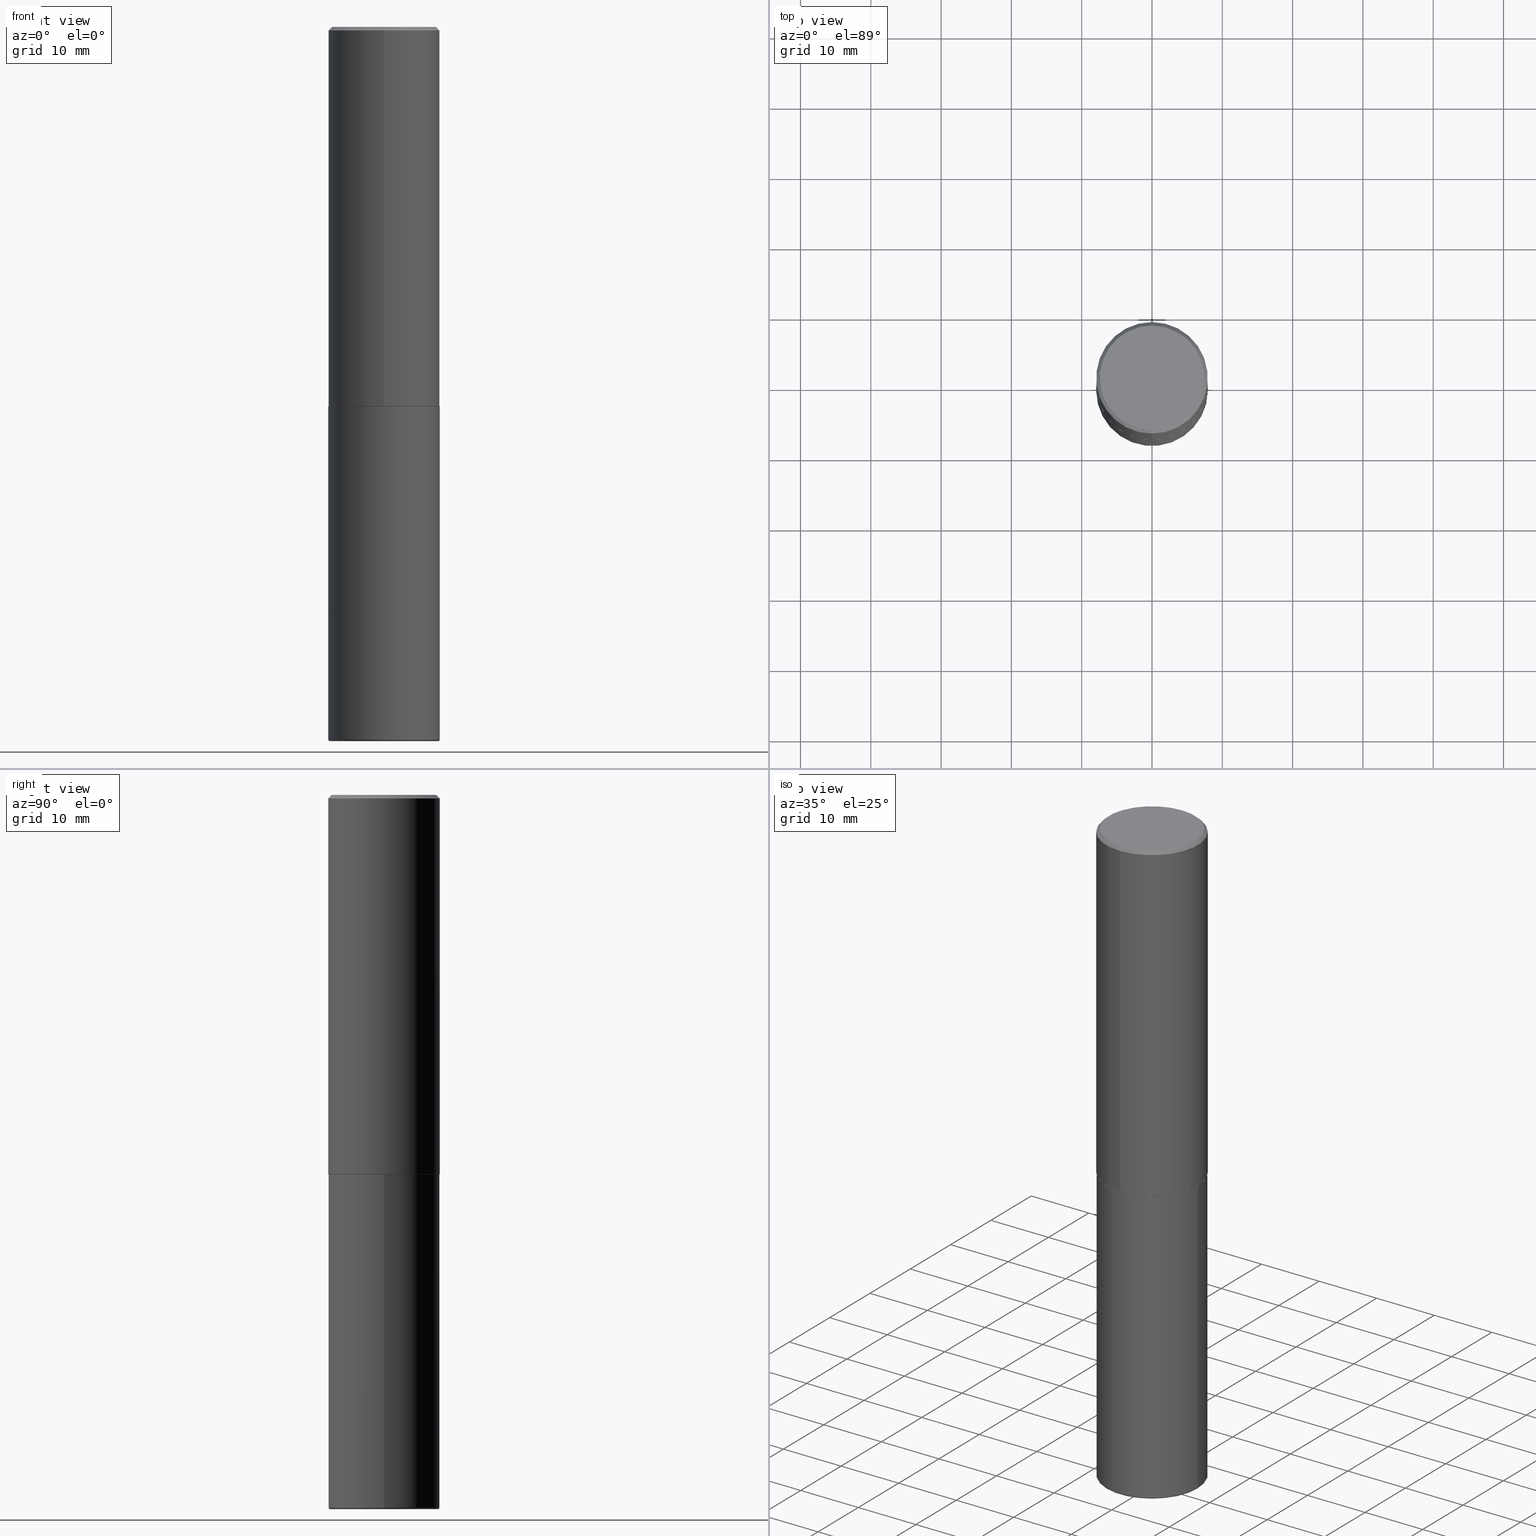
[diagram: canonical four-view strip — front | top / right | iso, engineering-drawing reading convention]
A machine part, canonical four-view strip (front | top / right | iso — engineering-drawing reading convention). The complete STEP part file that produces these views, byte-faithful:
ISO-10303-21;
HEADER;
FILE_DESCRIPTION (( 'STEP AP203' ),
    '1' );
FILE_NAME ('37570.STEP',
    '2024-03-02T04:30:19',
    ( '' ),
    ( '' ),
    'SwSTEP 2.0',
    'SolidWorks 2023',
    '' );
FILE_SCHEMA (( 'CONFIG_CONTROL_DESIGN' ));
ENDSEC;

DATA;
#1 = APPROVAL_ROLE ( '' ) ;
#2 = DIRECTION ( 'NONE',  ( -6.982962677686265133E-15, -1.000000000000000000, 3.492364022149836753E-15 ) ) ;
#3 = CIRCLE ( 'NONE', #21, 0.3114999999999999991 ) ;
#4 = DIRECTION ( 'NONE',  ( -2.445468806185136597E-29, 3.491481338843145583E-15, 1.000000000000000000 ) ) ;
#5 = ADVANCED_FACE ( 'NONE', ( #17 ), #206, .T. ) ;
#6 = ORIENTED_EDGE ( 'NONE', *, *, #352, .T. ) ;
#7 = DIRECTION ( 'NONE',  ( 1.000000000000000000, -6.982962677686265133E-15, 0.000000000000000000 ) ) ;
#8 = ADVANCED_FACE ( 'NONE', ( #214 ), #410, .T. ) ;
#9 = APPROVAL_PERSON_ORGANIZATION ( #359, #217, #1 ) ;
#10 = CIRCLE ( 'NONE', #149, 0.2924999999999999822 ) ;
#11 = CARTESIAN_POINT ( 'NONE',  ( -0.3025000000000000466, -1.178161876630984610E-14, -3.989999999999999769 ) ) ;
#12 = CARTESIAN_POINT ( 'NONE',  ( -2.143905624303602824E-15, -0.3125000000000000555, -0.01999999999999897693 ) ) ;
#13 = VERTEX_POINT ( 'NONE', #177 ) ;
#14 = DIRECTION ( 'NONE',  ( -6.982962677686265133E-15, -1.000000000000000000, 3.496765431890256920E-15 ) ) ;
#15 = ORIENTED_EDGE ( 'NONE', *, *, #160, .F. ) ;
#16 = VECTOR ( 'NONE', #114, 39.37007874015748143 ) ;
#17 = FACE_OUTER_BOUND ( 'NONE', #101, .T. ) ;
#18 = EDGE_LOOP ( 'NONE', ( #384, #405 ) ) ;
#19 = SECURITY_CLASSIFICATION ( '', '', #365 ) ;
#20 = CARTESIAN_POINT ( 'NONE',  ( 9.757420536678694842E-29, -1.393101054198414910E-14, -3.989999999999999769 ) ) ;
#21 = AXIS2_PLACEMENT_3D ( 'NONE', #229, #361, #59 ) ;
#22 = PRODUCT_DEFINITION ( 'UNKNOWN', '', #296, #407 ) ;
#23 = DIRECTION ( 'NONE',  ( -2.445468806185136597E-29, 3.491481338843145583E-15, 1.000000000000000000 ) ) ;
#24 = ORIENTED_EDGE ( 'NONE', *, *, #123, .T. ) ;
#25 = CARTESIAN_POINT ( 'NONE',  ( 2.182175836776958741E-15, 0.3124999999999999445, -0.02000000000000116268 ) ) ;
#26 = CARTESIAN_POINT ( 'NONE',  ( 0.3125000000000000000, -2.182175836776958347E-15, 1.523805242436230075E-29 ) ) ;
#27 = PERSON_AND_ORGANIZATION_ROLE ( 'classification_officer' ) ;
#28 = CARTESIAN_POINT ( 'NONE',  ( 9.781875224740545266E-29, -1.396592535537258075E-14, -3.999999999999999556 ) ) ;
#29 = ORIENTED_EDGE ( 'NONE', *, *, #202, .F. ) ;
#30 = CARTESIAN_POINT ( 'NONE',  ( -2.150299018297948745E-46, 3.071607443834507134E-32, 8.795209847407834549E-18 ) ) ;
#31 = ADVANCED_FACE ( 'NONE', ( #312 ), #128, .T. ) ;
#32 = DIRECTION ( 'NONE',  ( -2.444852431726452894E-29, 3.492364022149836358E-15, 1.000000000000000000 ) ) ;
#33 = ORIENTED_EDGE ( 'NONE', *, *, #202, .T. ) ;
#34 = CARTESIAN_POINT ( 'NONE',  ( -2.175192874099219874E-15, -0.3115000000000074376, -2.124999999999998668 ) ) ;
#35 = AXIS2_PLACEMENT_3D ( 'NONE', #42, #369, #70 ) ;
#36 = MANIFOLD_SOLID_BREP ( 'Body-Move/Copy2[2]', #167 ) ;
#37 = DIRECTION ( 'NONE',  ( -2.445468806185136597E-29, 3.491481338843145583E-15, 1.000000000000000000 ) ) ;
#38 = MANIFOLD_SOLID_BREP ( 'Body-Move/Copy2[1]', #327 ) ;
#39 = LINE ( 'NONE', #194, #415 ) ;
#40 = CARTESIAN_POINT ( 'NONE',  ( 5.195311417418712329E-29, -7.421273547068401324E-15, -2.124999999999999556 ) ) ;
#41 = CC_DESIGN_APPROVAL ( #46, ( #19 ) ) ;
#42 = CARTESIAN_POINT ( 'NONE',  ( 0.000000000000000000, 0.000000000000000000, 0.000000000000000000 ) ) ;
#43 = AXIS2_PLACEMENT_3D ( 'NONE', #20, #406, #314 ) ;
#44 = DIRECTION ( 'NONE',  ( 1.000000000000000000, -6.982962677686268288E-15, 0.000000000000000000 ) ) ;
#45 = AXIS2_PLACEMENT_3D ( 'NONE', #329, #32, #154 ) ;
#46 = APPROVAL ( #230, 'UNSPECIFIED' ) ;
#47 = DIRECTION ( 'NONE',  ( -2.444852431726452894E-29, 3.492364022149836358E-15, 1.000000000000000000 ) ) ;
#48 = DATE_AND_TIME ( #344, #414 ) ;
#49 = DIRECTION ( 'NONE',  ( -2.445468806185136597E-29, 3.491481338843145583E-15, 1.000000000000000000 ) ) ;
#50 = EDGE_LOOP ( 'NONE', ( #279, #302 ) ) ;
#51 = ORIENTED_EDGE ( 'NONE', *, *, #408, .F. ) ;
#52 = CARTESIAN_POINT ( 'NONE',  ( 9.757420536678694842E-29, -1.393101054198414910E-14, -3.989999999999999769 ) ) ;
#53 = EDGE_CURVE ( 'NONE', #288, #276, #284, .T. ) ;
#54 = APPROVAL_STATUS ( 'not_yet_approved' ) ;
#55 = ORIENTED_EDGE ( 'NONE', *, *, #372, .T. ) ;
#56 = DIRECTION ( 'NONE',  ( 1.000000000000000000, -6.982962677686261189E-15, 0.000000000000000000 ) ) ;
#57 = ADVANCED_FACE ( 'NONE', ( #63 ), #325, .F. ) ;
#58 = EDGE_CURVE ( 'NONE', #209, #139, #265, .T. ) ;
#59 = DIRECTION ( 'NONE',  ( -6.982962677686265922E-15, -1.000000000000000000, 3.507991003100177457E-15 ) ) ;
#60 = PRODUCT_RELATED_PRODUCT_CATEGORY ( 'detail', '', ( #122 ) ) ;
#61 = PERSON_AND_ORGANIZATION_ROLE ( 'creator' ) ;
#62 = VECTOR ( 'NONE', #248, 39.37007874015748143 ) ;
#63 = FACE_OUTER_BOUND ( 'NONE', #18, .T. ) ;
#64 = DIRECTION ( 'NONE',  ( 1.000000000000000000, -6.982962677686265922E-15, 0.000000000000000000 ) ) ;
#65 = CC_DESIGN_PERSON_AND_ORGANIZATION_ASSIGNMENT ( #187, #232, ( #296 ) ) ;
#66 = ORIENTED_EDGE ( 'NONE', *, *, #224, .F. ) ;
#67 = DIRECTION ( 'NONE',  ( 2.438088387897960049E-29, -3.491481338843145188E-15, -1.000000000000000000 ) ) ;
#68 = DIRECTION ( 'NONE',  ( -2.445468806185136597E-29, 3.491481338843145583E-15, 1.000000000000000000 ) ) ;
#69 = AXIS2_PLACEMENT_3D ( 'NONE', #120, #326, #83 ) ;
#70 = DIRECTION ( 'NONE',  ( -6.982962677686265133E-15, -1.000000000000000000, 3.492364022149836358E-15 ) ) ;
#71 = LINE ( 'NONE', #401, #115 ) ;
#72 = ORIENTED_EDGE ( 'NONE', *, *, #116, .T. ) ;
#73 = EDGE_LOOP ( 'NONE', ( #319, #246, #260, #136 ) ) ;
#74 = SHAPE_DEFINITION_REPRESENTATION ( #337, #237 ) ;
#75 = EDGE_LOOP ( 'NONE', ( #29, #353, #24, #409 ) ) ;
#76 = LENGTH_MEASURE_WITH_UNIT ( LENGTH_MEASURE( 0.02539999999999999897 ), #289 );
#77 = ORIENTED_EDGE ( 'NONE', *, *, #322, .F. ) ;
#78 = FACE_OUTER_BOUND ( 'NONE', #152, .T. ) ;
#79 = CONICAL_SURFACE ( 'NONE', #388, 0.3114999999999999991, 0.7853981633975507526 ) ;
#80 = EDGE_CURVE ( 'NONE', #102, #252, #124, .T. ) ;
#81 = FACE_OUTER_BOUND ( 'NONE', #75, .T. ) ;
#82 = ADVANCED_FACE ( 'NONE', ( #81 ), #130, .T. ) ;
#83 = DIRECTION ( 'NONE',  ( 1.000000000000000000, -6.982962677686265133E-15, 0.000000000000000000 ) ) ;
#84 = ADVANCED_FACE ( 'NONE', ( #148 ), #298, .T. ) ;
#85 = AXIS2_PLACEMENT_3D ( 'NONE', #52, #23, #142 ) ;
#86 = AXIS2_PLACEMENT_3D ( 'NONE', #200, #68, #400 ) ;
#87 = DIRECTION ( 'NONE',  ( 6.982962677686265922E-15, 1.000000000000000000, -3.492364022149836358E-15 ) ) ;
#88 = CC_DESIGN_PERSON_AND_ORGANIZATION_ASSIGNMENT ( #178, #258, ( #122 ) ) ;
#89 = VERTEX_POINT ( 'NONE', #146 ) ;
#90 = LINE ( 'NONE', #34, #368 ) ;
#91 = EDGE_CURVE ( 'NONE', #139, #288, #300, .T. ) ;
#92 = PERSON_AND_ORGANIZATION ( #341, #190 ) ;
#93 = CARTESIAN_POINT ( 'NONE',  ( -0.3125000000000000000, -1.171056449273383602E-14, -3.989999999999999769 ) ) ;
#94 = AXIS2_PLACEMENT_3D ( 'NONE', #301, #183, #14 ) ;
#95 = DIRECTION ( 'NONE',  ( -1.000000000000000000, 7.105427357601049190E-15, 0.000000000000000000 ) ) ;
#96 = LINE ( 'NONE', #238, #234 ) ;
#97 = APPROVAL_DATE_TIME ( #275, #397 ) ;
#98 = CIRCLE ( 'NONE', #45, 0.3125000000000002776 ) ;
#99 = ORIENTED_EDGE ( 'NONE', *, *, #91, .F. ) ;
#100 = CC_DESIGN_PERSON_AND_ORGANIZATION_ASSIGNMENT ( #242, #141, ( #22 ) ) ;
#101 = EDGE_LOOP ( 'NONE', ( #216, #334, #245, #66 ) ) ;
#102 = VERTEX_POINT ( 'NONE', #291 ) ;
#103 = UNCERTAINTY_MEASURE_WITH_UNIT (LENGTH_MEASURE( 1.000000000000000082E-05 ), #283, 'distance_accuracy_value', 'NONE');
#104 = VERTEX_POINT ( 'NONE', #295 ) ;
#105 = CC_DESIGN_SECURITY_CLASSIFICATION ( #19, ( #296 ) ) ;
#106 = AXIS2_PLACEMENT_3D ( 'NONE', #392, #321, #56 ) ;
#107 = VERTEX_POINT ( 'NONE', #25 ) ;
#108 = DIMENSIONAL_EXPONENTS ( 1.000000000000000000, 0.000000000000000000, 0.000000000000000000, 0.000000000000000000, 0.000000000000000000, 0.000000000000000000, 0.000000000000000000 ) ;
#109 = EDGE_LOOP ( 'NONE', ( #145, #33, #395, #172 ) ) ;
#110 = ORIENTED_EDGE ( 'NONE', *, *, #195, .F. ) ;
#111 = APPLICATION_PROTOCOL_DEFINITION ( 'international standard', 'config_control_design', 1994, #239 ) ;
#112 = CC_DESIGN_APPROVAL ( #397, ( #22 ) ) ;
#113 = CARTESIAN_POINT ( 'NONE',  ( 0.000000000000000000, 0.000000000000000000, 0.000000000000000000 ) ) ;
#114 = DIRECTION ( 'NONE',  ( 4.937700262164541731E-15, 0.7071067811865442421, -0.7071067811865507924 ) ) ;
#115 = VECTOR ( 'NONE', #198, 39.37007874015748143 ) ;
#116 = EDGE_CURVE ( 'NONE', #157, #208, #3, .T. ) ;
#117 = DIRECTION ( 'NONE',  ( -2.444852431726452894E-29, 3.492364022149836358E-15, 1.000000000000000000 ) ) ;
#118 = EDGE_CURVE ( 'NONE', #139, #209, #317, .T. ) ;
#119 = DIRECTION ( 'NONE',  ( -2.445468806185136877E-29, 3.491481338843145188E-15, 1.000000000000000000 ) ) ;
#120 = CARTESIAN_POINT ( 'NONE',  ( 5.196621213143414147E-29, -7.419397845041682046E-15, -2.124999999999999556 ) ) ;
#121 = APPLICATION_CONTEXT ( 'configuration controlled 3d designs of mechanical parts and assemblies' ) ;
#122 = PRODUCT ( '37570', '37570', '', ( #250 ) ) ;
#123 = EDGE_CURVE ( 'NONE', #278, #107, #333, .T. ) ;
#124 = CIRCLE ( 'NONE', #180, 0.3125000000000002776 ) ;
#125 = DIRECTION ( 'NONE',  ( -1.000000000000000000, 6.982962677686265922E-15, -4.876176775795935793E-29 ) ) ;
#126 = DIRECTION ( 'NONE',  ( -6.982962677686265922E-15, -1.000000000000000000, 3.507991003100177457E-15 ) ) ;
#127 = DIRECTION ( 'NONE',  ( 5.024295867788576727E-15, 0.7071067811866224018, 0.7071067811864726327 ) ) ;
#128 = TOROIDAL_SURFACE ( 'NONE', #43, 0.3025000000000000466, 0.009999999999999825001 ) ;
#129 = CYLINDRICAL_SURFACE ( 'NONE', #35, 0.3125000000000001665 ) ;
#130 = CONICAL_SURFACE ( 'NONE', #135, 0.3125000000000000000, 0.7853981633974471688 ) ;
#131 = EDGE_LOOP ( 'NONE', ( #6, #378, #138, #51 ) ) ;
#132 = CARTESIAN_POINT ( 'NONE',  ( 4.889704863452922148E-31, -6.984728044299695791E-17, -0.02000000000000006981 ) ) ;
#133 = CALENDAR_DATE ( 2024, 1, 3 ) ;
#134 = EDGE_CURVE ( 'NONE', #252, #102, #98, .T. ) ;
#135 = AXIS2_PLACEMENT_3D ( 'NONE', #331, #184, #151 ) ;
#136 = ORIENTED_EDGE ( 'NONE', *, *, #372, .F. ) ;
#137 = ORIENTED_EDGE ( 'NONE', *, *, #53, .T. ) ;
#138 = ORIENTED_EDGE ( 'NONE', *, *, #134, .F. ) ;
#139 = VERTEX_POINT ( 'NONE', #416 ) ;
#140 = AXIS2_PLACEMENT_3D ( 'NONE', #264, #391, #87 ) ;
#141 = PERSON_AND_ORGANIZATION_ROLE ( 'creator' ) ;
#142 = DIRECTION ( 'NONE',  ( 1.000000000000000000, -6.982962677686268288E-15, 0.000000000000000000 ) ) ;
#143 =( NAMED_UNIT ( * ) PLANE_ANGLE_UNIT ( ) SI_UNIT ( $, .RADIAN. ) );
#144 = CARTESIAN_POINT ( 'NONE',  ( 5.195311417418712329E-29, -7.421273547068401324E-15, -2.124999999999999556 ) ) ;
#145 = ORIENTED_EDGE ( 'NONE', *, *, #362, .F. ) ;
#146 = CARTESIAN_POINT ( 'NONE',  ( -0.3125000000000000000, -8.454758144262601705E-15, -2.124999999999999556 ) ) ;
#147 = ADVANCED_FACE ( 'NONE', ( #78 ), #79, .T. ) ;
#148 = FACE_OUTER_BOUND ( 'NONE', #380, .T. ) ;
#149 = AXIS2_PLACEMENT_3D ( 'NONE', #398, #303, #342 ) ;
#150 = APPROVAL_DATE_TIME ( #155, #217 ) ;
#151 = DIRECTION ( 'NONE',  ( 6.982962677686265133E-15, 1.000000000000000000, -3.496765431890256920E-15 ) ) ;
#152 = EDGE_LOOP ( 'NONE', ( #77, #72, #308, #345 ) ) ;
#153 = CARTESIAN_POINT ( 'NONE',  ( 5.196621213143414147E-29, -7.419397845041682046E-15, -2.124999999999999556 ) ) ;
#154 = DIRECTION ( 'NONE',  ( -6.982962677686265922E-15, -1.000000000000000000, 3.496765431890253764E-15 ) ) ;
#155 = DATE_AND_TIME ( #393, #165 ) ;
#156 = CIRCLE ( 'NONE', #374, 0.2924999999999999822 ) ;
#157 = VERTEX_POINT ( 'NONE', #418 ) ;
#158 = DIRECTION ( 'NONE',  ( -4.937700262165053702E-15, -0.7071067811866175168, 0.7071067811864775177 ) ) ;
#159 = CARTESIAN_POINT ( 'NONE',  ( 0.000000000000000000, 0.000000000000000000, 0.000000000000000000 ) ) ;
#160 = EDGE_CURVE ( 'NONE', #288, #104, #390, .T. ) ;
#161 = ORIENTED_EDGE ( 'NONE', *, *, #80, .T. ) ;
#162 = FACE_OUTER_BOUND ( 'NONE', #50, .T. ) ;
#163 = EDGE_CURVE ( 'NONE', #276, #288, #382, .T. ) ;
#164 = CC_DESIGN_PERSON_AND_ORGANIZATION_ASSIGNMENT ( #92, #61, ( #296 ) ) ;
#165 = LOCAL_TIME ( 23, 30, 19.00000000000000000, #193 ) ;
#166 = CYLINDRICAL_SURFACE ( 'NONE', #411, 0.3125000000000001665 ) ;
#167 = CLOSED_SHELL ( 'NONE', ( #201, #281, #8, #82, #199, #147, #261, #57 ) ) ;
#168 = AXIS2_PLACEMENT_3D ( 'NONE', #356, #293, #226 ) ;
#169 = COORDINATED_UNIVERSAL_TIME_OFFSET ( 5, 0, .BEHIND. ) ;
#170 = DATE_TIME_ROLE ( 'creation_date' ) ;
#171 = LINE ( 'NONE', #207, #62 ) ;
#172 = ORIENTED_EDGE ( 'NONE', *, *, #123, .F. ) ;
#173 = AXIS2_PLACEMENT_3D ( 'NONE', #233, #304, #7 ) ;
#174 = ORIENTED_EDGE ( 'NONE', *, *, #277, .F. ) ;
#175 = DIRECTION ( 'NONE',  ( 1.000000000000000000, -6.982962677686266711E-15, 4.876176775795936353E-29 ) ) ;
#176 = EDGE_LOOP ( 'NONE', ( #137, #377, #174, #15 ) ) ;
#177 = CARTESIAN_POINT ( 'NONE',  ( -2.075300644325887493E-15, -0.2924999999999999822, 1.030311686326234990E-15 ) ) ;
#178 = PERSON_AND_ORGANIZATION ( #341, #190 ) ;
#179 = APPROVAL_PERSON_ORGANIZATION ( #280, #46, #358 ) ;
#180 = AXIS2_PLACEMENT_3D ( 'NONE', #189, #186, #253 ) ;
#181 = TOROIDAL_SURFACE ( 'NONE', #212, 0.3025000000000000466, 0.009999999999999825001 ) ;
#182 = CARTESIAN_POINT ( 'NONE',  ( 0.000000000000000000, 0.000000000000000000, 0.000000000000000000 ) ) ;
#183 = DIRECTION ( 'NONE',  ( -2.444852431726452894E-29, 3.492364022149836358E-15, 1.000000000000000000 ) ) ;
#184 = DIRECTION ( 'NONE',  ( 2.444852431726452894E-29, -3.492364022149836358E-15, -1.000000000000000000 ) ) ;
#185 = VERTEX_POINT ( 'NONE', #12 ) ;
#186 = DIRECTION ( 'NONE',  ( -2.444852431726452894E-29, 3.492364022149836358E-15, 1.000000000000000000 ) ) ;
#187 = PERSON_AND_ORGANIZATION ( #341, #190 ) ;
#188 = CIRCLE ( 'NONE', #69, 0.3125000000000000000 ) ;
#189 = CARTESIAN_POINT ( 'NONE',  ( 5.192866564986985411E-29, -7.417781183046251262E-15, -2.123999999999999666 ) ) ;
#190 = ORGANIZATION ( 'UNSPECIFIED', 'UNSPECIFIED', '' ) ;
#191 = PLANE ( 'NONE',  #219 ) ;
#192 = CARTESIAN_POINT ( 'NONE',  ( 2.182175836776958741E-15, 0.3124999999999999445, -0.02000000000000116268 ) ) ;
#193 = COORDINATED_UNIVERSAL_TIME_OFFSET ( 5, 0, .BEHIND. ) ;
#194 = CARTESIAN_POINT ( 'NONE',  ( 2.220446049250313475E-15, 0.3125000000000001665, -1.091363756921824478E-15 ) ) ;
#195 = EDGE_CURVE ( 'NONE', #107, #185, #290, .T. ) ;
#196 = COORDINATED_UNIVERSAL_TIME_OFFSET ( 5, 0, .BEHIND. ) ;
#197 = AXIS2_PLACEMENT_3D ( 'NONE', #357, #223, #64 ) ;
#198 = DIRECTION ( 'NONE',  ( -2.444852431726452614E-29, 3.492364022149836358E-15, 1.000000000000000000 ) ) ;
#199 = ADVANCED_FACE ( 'NONE', ( #339 ), #166, .T. ) ;
#200 = CARTESIAN_POINT ( 'NONE',  ( 0.000000000000000000, 0.000000000000000000, 0.000000000000000000 ) ) ;
#201 = ADVANCED_FACE ( 'NONE', ( #373 ), #257, .T. ) ;
#202 = EDGE_CURVE ( 'NONE', #13, #185, #171, .T. ) ;
#203 = AXIS2_PLACEMENT_3D ( 'NONE', #40, #236, #126 ) ;
#204 = CARTESIAN_POINT ( 'NONE',  ( 5.195311417418712329E-29, -7.421273547068401324E-15, -2.124999999999999556 ) ) ;
#205 =( NAMED_UNIT ( * ) SI_UNIT ( $, .STERADIAN. ) SOLID_ANGLE_UNIT ( ) );
#206 = CYLINDRICAL_SURFACE ( 'NONE', #381, 0.3125000000000000000 ) ;
#207 = CARTESIAN_POINT ( 'NONE',  ( -2.143905624303602824E-15, -0.3125000000000000555, -0.01999999999999897693 ) ) ;
#208 = VERTEX_POINT ( 'NONE', #346 ) ;
#209 = VERTEX_POINT ( 'NONE', #383 ) ;
#210 = ORIENTED_EDGE ( 'NONE', *, *, #53, .F. ) ;
#211 = CALENDAR_DATE ( 2024, 1, 3 ) ;
#212 = AXIS2_PLACEMENT_3D ( 'NONE', #231, #363, #335 ) ;
#213 = CC_DESIGN_DATE_AND_TIME_ASSIGNMENT ( #379, #311, ( #19 ) ) ;
#214 = FACE_OUTER_BOUND ( 'NONE', #109, .T. ) ;
#215 = DIRECTION ( 'NONE',  ( 1.000000000000000000, 0.000000000000000000, 0.000000000000000000 ) ) ;
#216 = ORIENTED_EDGE ( 'NONE', *, *, #385, .F. ) ;
#217 = APPROVAL ( #389, 'UNSPECIFIED' ) ;
#218 = CARTESIAN_POINT ( 'NONE',  ( -2.182175836776908254E-15, -0.3125000000000077161, -2.123999999999998334 ) ) ;
#219 = AXIS2_PLACEMENT_3D ( 'NONE', #153, #67, #125 ) ;
#220 = CARTESIAN_POINT ( 'NONE',  ( 5.195311417418712329E-29, -7.421273547068401324E-15, -2.124999999999999556 ) ) ;
#221 = APPROVAL_DATE_TIME ( #323, #46 ) ;
#222 = LOCAL_TIME ( 23, 30, 19.00000000000000000, #169 ) ;
#223 = DIRECTION ( 'NONE',  ( -2.445468806185136597E-29, 3.491481338843145583E-15, 1.000000000000000000 ) ) ;
#224 = EDGE_CURVE ( 'NONE', #89, #104, #188, .T. ) ;
#225 = LOCAL_TIME ( 23, 30, 19.00000000000000000, #287 ) ;
#226 = DIRECTION ( 'NONE',  ( -1.000000000000000000, 6.982962677686265922E-15, -4.876176775795935793E-29 ) ) ;
#227 = AXIS2_PLACEMENT_3D ( 'NONE', #320, #351, #310 ) ;
#228 = VECTOR ( 'NONE', #127, 39.37007874015748143 ) ;
#229 = CARTESIAN_POINT ( 'NONE',  ( 5.195311417418712329E-29, -7.421273547068401324E-15, -2.124999999999999556 ) ) ;
#230 = APPROVAL_STATUS ( 'not_yet_approved' ) ;
#231 = CARTESIAN_POINT ( 'NONE',  ( 9.757420536678694842E-29, -1.393101054198414910E-14, -3.989999999999999769 ) ) ;
#232 = PERSON_AND_ORGANIZATION_ROLE ( 'design_supplier' ) ;
#233 = CARTESIAN_POINT ( 'NONE',  ( 5.196621213143414147E-29, -7.419397845041682046E-15, -2.124999999999999556 ) ) ;
#234 = VECTOR ( 'NONE', #336, 39.37007874015748143 ) ;
#235 = FACE_OUTER_BOUND ( 'NONE', #73, .T. ) ;
#236 = DIRECTION ( 'NONE',  ( -2.444852431726452894E-29, 3.492364022149836358E-15, 1.000000000000000000 ) ) ;
#237 = ADVANCED_BREP_SHAPE_REPRESENTATION ( '37570', ( #38, #36, #268 ), #292 ) ;
#238 = CARTESIAN_POINT ( 'NONE',  ( -0.3125000000000000000, 2.220446049250313081E-15, -1.537167215704658232E-29 ) ) ;
#239 = APPLICATION_CONTEXT ( 'configuration controlled 3d designs of mechanical parts and assemblies' ) ;
#240 = DIRECTION ( 'NONE',  ( -6.982962677686265133E-15, -1.000000000000000000, 3.492364022149836358E-15 ) ) ;
#241 = CIRCLE ( 'NONE', #94, 0.3125000000000000000 ) ;
#242 = PERSON_AND_ORGANIZATION ( #341, #190 ) ;
#243 = EDGE_LOOP ( 'NONE', ( #403, #161, #55, #110 ) ) ;
#244 = APPROVAL_PERSON_ORGANIZATION ( #387, #397, #251 ) ;
#245 = ORIENTED_EDGE ( 'NONE', *, *, #160, .T. ) ;
#246 = ORIENTED_EDGE ( 'NONE', *, *, #370, .T. ) ;
#247 = AXIS2_PLACEMENT_3D ( 'NONE', #144, #255, #355 ) ;
#248 = DIRECTION ( 'NONE',  ( -4.851104656540957964E-15, -0.7071067811865491270, -0.7071067811865459074 ) ) ;
#249 = EDGE_LOOP ( 'NONE', ( #364, #413, #210, #99 ) ) ;
#250 = MECHANICAL_CONTEXT ( 'NONE', #239, 'mechanical' ) ;
#251 = APPROVAL_ROLE ( '' ) ;
#252 = VERTEX_POINT ( 'NONE', #218 ) ;
#253 = DIRECTION ( 'NONE',  ( -6.982962677686265922E-15, -1.000000000000000000, 3.496765431890253764E-15 ) ) ;
#254 = DIRECTION ( 'NONE',  ( 0.000000000000000000, 0.000000000000000000, 1.000000000000000000 ) ) ;
#255 = DIRECTION ( 'NONE',  ( -2.444852431726452333E-29, 3.492364022149836358E-15, 1.000000000000000000 ) ) ;
#256 = ORIENTED_EDGE ( 'NONE', *, *, #116, .F. ) ;
#257 = CONICAL_SURFACE ( 'NONE', #270, 0.3114999999999999991, 0.7853981633975507526 ) ;
#258 = PERSON_AND_ORGANIZATION_ROLE ( 'design_owner' ) ;
#259 = DIRECTION ( 'NONE',  ( -6.982962677686265922E-15, -1.000000000000000000, 3.507991003100177457E-15 ) ) ;
#260 = ORIENTED_EDGE ( 'NONE', *, *, #412, .F. ) ;
#261 = ADVANCED_FACE ( 'NONE', ( #417 ), #318, .F. ) ;
#262 = CC_DESIGN_PERSON_AND_ORGANIZATION_ASSIGNMENT ( #330, #27, ( #19 ) ) ;
#263 = CARTESIAN_POINT ( 'NONE',  ( 9.757420536678694842E-29, -1.393101054198414910E-14, -3.989999999999999769 ) ) ;
#264 = CARTESIAN_POINT ( 'NONE',  ( 2.042516583223232540E-15, 0.2924999999999999822, -1.017118871555123169E-15 ) ) ;
#265 = CIRCLE ( 'NONE', #316, 0.3025000000000000466 ) ;
#266 = EDGE_CURVE ( 'NONE', #278, #13, #10, .T. ) ;
#267 = FACE_OUTER_BOUND ( 'NONE', #249, .T. ) ;
#268 = AXIS2_PLACEMENT_3D ( 'NONE', #113, #254, #215 ) ;
#269 = CARTESIAN_POINT ( 'NONE',  ( 0.3125000000000000000, -1.611318637876110745E-14, -3.989999999999999769 ) ) ;
#270 = AXIS2_PLACEMENT_3D ( 'NONE', #204, #47, #376 ) ;
#271 = CARTESIAN_POINT ( 'NONE',  ( 2.213340621892763743E-15, 0.3114999999999925606, -2.125000000000000888 ) ) ;
#272 = DIRECTION ( 'NONE',  ( -2.444852431726452614E-29, 3.492364022149836358E-15, 1.000000000000000000 ) ) ;
#273 = DIRECTION ( 'NONE',  ( -2.444852431726452894E-29, 3.492364022149836358E-15, 1.000000000000000000 ) ) ;
#274 = CC_DESIGN_DATE_AND_TIME_ASSIGNMENT ( #48, #170, ( #22 ) ) ;
#275 = DATE_AND_TIME ( #133, #222 ) ;
#276 = VERTEX_POINT ( 'NONE', #93 ) ;
#277 = EDGE_CURVE ( 'NONE', #104, #89, #399, .T. ) ;
#278 = VERTEX_POINT ( 'NONE', #367 ) ;
#279 = ORIENTED_EDGE ( 'NONE', *, *, #277, .T. ) ;
#280 = PERSON_AND_ORGANIZATION ( #341, #190 ) ;
#281 = ADVANCED_FACE ( 'NONE', ( #235 ), #129, .T. ) ;
#282 = ORIENTED_EDGE ( 'NONE', *, *, #313, .F. ) ;
#283 =( CONVERSION_BASED_UNIT ( 'INCH', #76 ) LENGTH_UNIT ( ) NAMED_UNIT ( #108 ) );
#284 = CIRCLE ( 'NONE', #85, 0.3125000000000000555 ) ;
#285 = CIRCLE ( 'NONE', #309, 0.009999999999999825001 ) ;
#286 = DIRECTION ( 'NONE',  ( 1.000000000000000000, -6.982962677686265922E-15, 0.000000000000000000 ) ) ;
#287 = COORDINATED_UNIVERSAL_TIME_OFFSET ( 5, 0, .BEHIND. ) ;
#288 = VERTEX_POINT ( 'NONE', #269 ) ;
#289 =( LENGTH_UNIT ( ) NAMED_UNIT ( * ) SI_UNIT ( $, .METRE. ) );
#290 = CIRCLE ( 'NONE', #360, 0.3125000000000000000 ) ;
#291 = CARTESIAN_POINT ( 'NONE',  ( 2.220446049250340297E-15, 0.3124999999999928391, -2.124000000000000554 ) ) ;
#292 =( GEOMETRIC_REPRESENTATION_CONTEXT ( 3 ) GLOBAL_UNCERTAINTY_ASSIGNED_CONTEXT ( ( #103 ) ) GLOBAL_UNIT_ASSIGNED_CONTEXT ( ( #283, #143, #205 ) ) REPRESENTATION_CONTEXT ( 'NONE', 'WORKASPACE' ) );
#293 = DIRECTION ( 'NONE',  ( 2.438088387897960049E-29, -3.491481338843145188E-15, -1.000000000000000000 ) ) ;
#294 = CALENDAR_DATE ( 2024, 1, 3 ) ;
#295 = CARTESIAN_POINT ( 'NONE',  ( 0.3125000000000000000, -9.601573681818640393E-15, -2.124999999999999556 ) ) ;
#296 = PRODUCT_DEFINITION_FORMATION_WITH_SPECIFIED_SOURCE ( 'ANY', '', #122, .NOT_KNOWN. ) ;
#297 = CYLINDRICAL_SURFACE ( 'NONE', #86, 0.3125000000000000000 ) ;
#298 = PLANE ( 'NONE',  #168 ) ;
#299 = LOCAL_TIME ( 23, 30, 19.00000000000000000, #196 ) ;
#300 = CIRCLE ( 'NONE', #106, 0.009999999999999825001 ) ;
#301 = CARTESIAN_POINT ( 'NONE',  ( 4.889704863452922148E-31, -6.984728044299695791E-17, -0.02000000000000006981 ) ) ;
#302 = ORIENTED_EDGE ( 'NONE', *, *, #224, .T. ) ;
#303 = DIRECTION ( 'NONE',  ( -2.444852431726452894E-29, 3.492364022149836358E-15, 1.000000000000000000 ) ) ;
#304 = DIRECTION ( 'NONE',  ( -2.445468806185136597E-29, 3.491481338843145583E-15, 1.000000000000000000 ) ) ;
#305 = DIRECTION ( 'NONE',  ( -2.444852431726452894E-29, 3.492364022149836358E-15, 1.000000000000000000 ) ) ;
#306 = LINE ( 'NONE', #271, #228 ) ;
#307 = ORIENTED_EDGE ( 'NONE', *, *, #118, .F. ) ;
#308 = ORIENTED_EDGE ( 'NONE', *, *, #408, .T. ) ;
#309 = AXIS2_PLACEMENT_3D ( 'NONE', #11, #332, #95 ) ;
#310 = DIRECTION ( 'NONE',  ( 6.982962677686265133E-15, 1.000000000000000000, -3.496765431890256920E-15 ) ) ;
#311 = DATE_TIME_ROLE ( 'classification_date' ) ;
#312 = FACE_OUTER_BOUND ( 'NONE', #347, .T. ) ;
#313 = EDGE_CURVE ( 'NONE', #209, #276, #285, .T. ) ;
#314 = DIRECTION ( 'NONE',  ( 1.000000000000000000, -6.982962677686265922E-15, 4.883557194083112340E-29 ) ) ;
#315 = APPLICATION_PROTOCOL_DEFINITION ( 'international standard', 'config_control_design', 1994, #121 ) ;
#316 = AXIS2_PLACEMENT_3D ( 'NONE', #28, #4, #286 ) ;
#317 = CIRCLE ( 'NONE', #197, 0.3025000000000000466 ) ;
#318 = PLANE ( 'NONE',  #247 ) ;
#319 = ORIENTED_EDGE ( 'NONE', *, *, #134, .T. ) ;
#320 = CARTESIAN_POINT ( 'NONE',  ( 4.889704863452922148E-31, -6.984728044299695791E-17, -0.02000000000000006981 ) ) ;
#321 = DIRECTION ( 'NONE',  ( -6.982962677686266711E-15, -1.000000000000000000, 3.491481338843145583E-15 ) ) ;
#322 = EDGE_CURVE ( 'NONE', #157, #102, #306, .T. ) ;
#323 = DATE_AND_TIME ( #211, #225 ) ;
#324 = EDGE_LOOP ( 'NONE', ( #349, #256 ) ) ;
#325 = PLANE ( 'NONE',  #140 ) ;
#326 = DIRECTION ( 'NONE',  ( -2.445468806185136597E-29, 3.491481338843145583E-15, 1.000000000000000000 ) ) ;
#327 = CLOSED_SHELL ( 'NONE', ( #340, #404, #394, #5, #31, #84 ) ) ;
#328 = VECTOR ( 'NONE', #119, 39.37007874015748143 ) ;
#329 = CARTESIAN_POINT ( 'NONE',  ( 5.192866564986985411E-29, -7.417781183046251262E-15, -2.123999999999999666 ) ) ;
#330 = PERSON_AND_ORGANIZATION ( #341, #190 ) ;
#331 = CARTESIAN_POINT ( 'NONE',  ( 4.889704863452922148E-31, -6.984728044299695791E-17, -0.02000000000000006981 ) ) ;
#332 = DIRECTION ( 'NONE',  ( 7.105427357601001859E-15, 1.000000000000000000, -3.491481338843145583E-15 ) ) ;
#333 = LINE ( 'NONE', #192, #16 ) ;
#334 = ORIENTED_EDGE ( 'NONE', *, *, #163, .T. ) ;
#335 = DIRECTION ( 'NONE',  ( 1.000000000000000000, -6.982962677686265922E-15, 4.883557194083112340E-29 ) ) ;
#336 = DIRECTION ( 'NONE',  ( -2.445468806185136877E-29, 3.491481338843145188E-15, 1.000000000000000000 ) ) ;
#337 = PRODUCT_DEFINITION_SHAPE ( 'NONE', 'NONE',  #22 ) ;
#338 = FACE_OUTER_BOUND ( 'NONE', #176, .T. ) ;
#339 = FACE_OUTER_BOUND ( 'NONE', #243, .T. ) ;
#340 = ADVANCED_FACE ( 'NONE', ( #338 ), #297, .T. ) ;
#341 = PERSON ( 'UNSPECIFIED', 'UNSPECIFIED', 'UNSPECIFIED', ('UNSPECIFIED'), ('UNSPECIFIED'), ('UNSPECIFIED') ) ;
#342 = DIRECTION ( 'NONE',  ( -6.982962677686265133E-15, -1.000000000000000000, 3.492364022149836753E-15 ) ) ;
#343 = ORIENTED_EDGE ( 'NONE', *, *, #163, .F. ) ;
#344 = CALENDAR_DATE ( 2024, 1, 3 ) ;
#345 = ORIENTED_EDGE ( 'NONE', *, *, #80, .F. ) ;
#346 = CARTESIAN_POINT ( 'NONE',  ( -2.175192874099219874E-15, -0.3115000000000074376, -2.124999999999998668 ) ) ;
#347 = EDGE_LOOP ( 'NONE', ( #282, #386, #366, #343 ) ) ;
#348 = AXIS2_PLACEMENT_3D ( 'NONE', #263, #37, #44 ) ;
#349 = ORIENTED_EDGE ( 'NONE', *, *, #352, .F. ) ;
#350 = ORIENTED_EDGE ( 'NONE', *, *, #58, .F. ) ;
#351 = DIRECTION ( 'NONE',  ( 2.444852431726452894E-29, -3.492364022149836358E-15, -1.000000000000000000 ) ) ;
#352 = EDGE_CURVE ( 'NONE', #208, #157, #354, .T. ) ;
#353 = ORIENTED_EDGE ( 'NONE', *, *, #266, .F. ) ;
#354 = CIRCLE ( 'NONE', #203, 0.3114999999999999991 ) ;
#355 = DIRECTION ( 'NONE',  ( -6.982962677686265922E-15, -1.000000000000000000, 3.492364022149836358E-15 ) ) ;
#356 = CARTESIAN_POINT ( 'NONE',  ( 1.482687160976392448E-28, -6.741203388657175081E-15, -4.000000000000000000 ) ) ;
#357 = CARTESIAN_POINT ( 'NONE',  ( 9.781875224740545266E-29, -1.396592535537258075E-14, -3.999999999999999556 ) ) ;
#358 = APPROVAL_ROLE ( '' ) ;
#359 = PERSON_AND_ORGANIZATION ( #341, #190 ) ;
#360 = AXIS2_PLACEMENT_3D ( 'NONE', #132, #273, #402 ) ;
#361 = DIRECTION ( 'NONE',  ( -2.444852431726452894E-29, 3.492364022149836358E-15, 1.000000000000000000 ) ) ;
#362 = EDGE_CURVE ( 'NONE', #13, #278, #156, .T. ) ;
#363 = DIRECTION ( 'NONE',  ( -2.445468806185136597E-29, 3.491481338843145583E-15, 1.000000000000000000 ) ) ;
#364 = ORIENTED_EDGE ( 'NONE', *, *, #118, .T. ) ;
#365 = SECURITY_CLASSIFICATION_LEVEL ( 'unclassified' ) ;
#366 = ORIENTED_EDGE ( 'NONE', *, *, #91, .T. ) ;
#367 = CARTESIAN_POINT ( 'NONE',  ( 2.112346210000095838E-15, 0.2924999999999999822, -1.012721266631419361E-15 ) ) ;
#368 = VECTOR ( 'NONE', #158, 39.37007874015748143 ) ;
#369 = DIRECTION ( 'NONE',  ( -2.444852431726452894E-29, 3.492364022149836358E-15, 1.000000000000000000 ) ) ;
#370 = EDGE_CURVE ( 'NONE', #102, #107, #39, .T. ) ;
#371 = DIRECTION ( 'NONE',  ( -2.444852431726452894E-29, 3.492364022149836358E-15, 1.000000000000000000 ) ) ;
#372 = EDGE_CURVE ( 'NONE', #252, #185, #71, .T. ) ;
#373 = FACE_OUTER_BOUND ( 'NONE', #131, .T. ) ;
#374 = AXIS2_PLACEMENT_3D ( 'NONE', #30, #371, #2 ) ;
#375 = COORDINATED_UNIVERSAL_TIME_OFFSET ( 5, 0, .BEHIND. ) ;
#376 = DIRECTION ( 'NONE',  ( -6.982962677686265922E-15, -1.000000000000000000, 3.507991003100177457E-15 ) ) ;
#377 = ORIENTED_EDGE ( 'NONE', *, *, #385, .T. ) ;
#378 = ORIENTED_EDGE ( 'NONE', *, *, #322, .T. ) ;
#379 = DATE_AND_TIME ( #294, #299 ) ;
#380 = EDGE_LOOP ( 'NONE', ( #307, #350 ) ) ;
#381 = AXIS2_PLACEMENT_3D ( 'NONE', #182, #49, #175 ) ;
#382 = CIRCLE ( 'NONE', #348, 0.3125000000000000555 ) ;
#383 = CARTESIAN_POINT ( 'NONE',  ( -0.3025000000000000466, -1.176354903621605689E-14, -3.999999999999999556 ) ) ;
#384 = ORIENTED_EDGE ( 'NONE', *, *, #266, .T. ) ;
#385 = EDGE_CURVE ( 'NONE', #276, #89, #96, .T. ) ;
#386 = ORIENTED_EDGE ( 'NONE', *, *, #58, .T. ) ;
#387 = PERSON_AND_ORGANIZATION ( #341, #190 ) ;
#388 = AXIS2_PLACEMENT_3D ( 'NONE', #220, #117, #259 ) ;
#389 = APPROVAL_STATUS ( 'not_yet_approved' ) ;
#390 = LINE ( 'NONE', #26, #328 ) ;
#391 = DIRECTION ( 'NONE',  ( 2.444852431726452333E-29, -3.492364022149836358E-15, -1.000000000000000000 ) ) ;
#392 = CARTESIAN_POINT ( 'NONE',  ( 0.3025000000000000466, -1.604335675198424415E-14, -3.989999999999999769 ) ) ;
#393 = CALENDAR_DATE ( 2024, 1, 3 ) ;
#394 = ADVANCED_FACE ( 'NONE', ( #162 ), #191, .F. ) ;
#395 = ORIENTED_EDGE ( 'NONE', *, *, #412, .T. ) ;
#396 = CC_DESIGN_APPROVAL ( #217, ( #296 ) ) ;
#397 = APPROVAL ( #54, 'UNSPECIFIED' ) ;
#398 = CARTESIAN_POINT ( 'NONE',  ( -2.150299018297948745E-46, 3.071607443834507134E-32, 8.795209847407834549E-18 ) ) ;
#399 = CIRCLE ( 'NONE', #173, 0.3125000000000000000 ) ;
#400 = DIRECTION ( 'NONE',  ( 1.000000000000000000, -6.982962677686266711E-15, 4.876176775795936353E-29 ) ) ;
#401 = CARTESIAN_POINT ( 'NONE',  ( -2.182175836776959136E-15, -0.3125000000000001665, 1.091363756921824478E-15 ) ) ;
#402 = DIRECTION ( 'NONE',  ( -6.982962677686265133E-15, -1.000000000000000000, 3.496765431890256920E-15 ) ) ;
#403 = ORIENTED_EDGE ( 'NONE', *, *, #370, .F. ) ;
#404 = ADVANCED_FACE ( 'NONE', ( #267 ), #181, .T. ) ;
#405 = ORIENTED_EDGE ( 'NONE', *, *, #362, .T. ) ;
#406 = DIRECTION ( 'NONE',  ( -2.445468806185136597E-29, 3.491481338843145583E-15, 1.000000000000000000 ) ) ;
#407 = DESIGN_CONTEXT ( 'detailed design', #121, 'design' ) ;
#408 = EDGE_CURVE ( 'NONE', #208, #252, #90, .T. ) ;
#409 = ORIENTED_EDGE ( 'NONE', *, *, #195, .T. ) ;
#410 = CONICAL_SURFACE ( 'NONE', #227, 0.3125000000000000000, 0.7853981633974471688 ) ;
#411 = AXIS2_PLACEMENT_3D ( 'NONE', #159, #305, #240 ) ;
#412 = EDGE_CURVE ( 'NONE', #185, #107, #241, .T. ) ;
#413 = ORIENTED_EDGE ( 'NONE', *, *, #313, .T. ) ;
#414 = LOCAL_TIME ( 23, 30, 19.00000000000000000, #375 ) ;
#415 = VECTOR ( 'NONE', #272, 39.37007874015748143 ) ;
#416 = CARTESIAN_POINT ( 'NONE',  ( 0.3025000000000000466, -1.607827156537267738E-14, -3.999999999999999556 ) ) ;
#417 = FACE_OUTER_BOUND ( 'NONE', #324, .T. ) ;
#418 = CARTESIAN_POINT ( 'NONE',  ( 2.216893335571564642E-15, 0.3114999999999925606, -2.125000000000000888 ) ) ;
ENDSEC;
END-ISO-10303-21;
